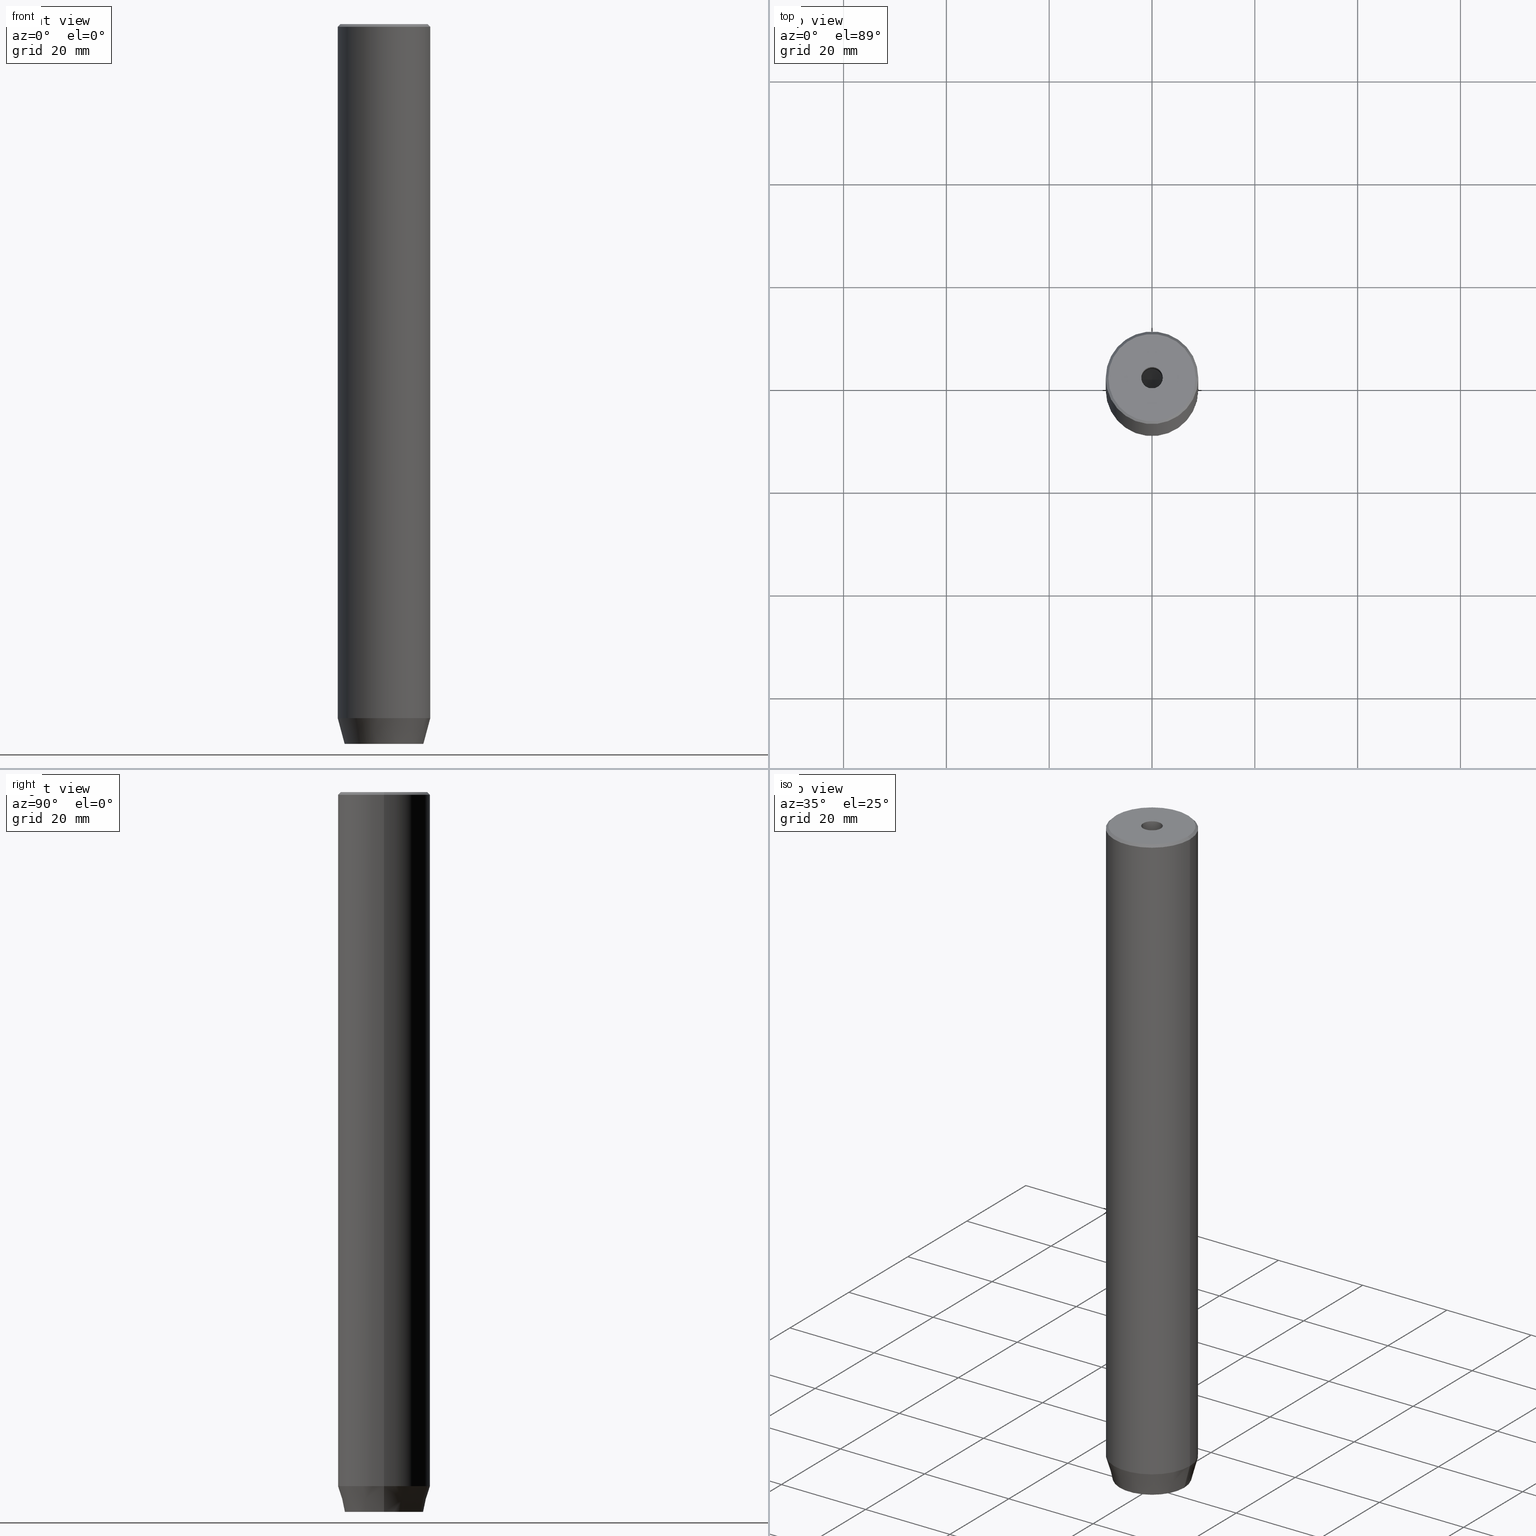
[diagram: canonical four-view strip — front | top / right | iso, engineering-drawing reading convention]
A machine part, canonical four-view strip (front | top / right | iso — engineering-drawing reading convention). The complete STEP part file that produces these views, byte-faithful:
ISO-10303-21;
HEADER;
FILE_DESCRIPTION (( 'STEP AP203' ),
    '1' );
FILE_NAME ('d8d7.STEP',
    '2024-01-02T20:36:21',
    ( '' ),
    ( '' ),
    'SwSTEP 2.0',
    'SolidWorks 2019',
    '' );
FILE_SCHEMA (( 'CONFIG_CONTROL_DESIGN' ));
ENDSEC;

DATA;
#1 = EDGE_LOOP ( 'NONE', ( #64, #183 ) ) ;
#2 = CARTESIAN_POINT ( 'NONE',  ( -1.084202172485504434E-16, 3.464101615137754830, -137.2000000000000171 ) ) ;
#3 = ORIENTED_EDGE ( 'NONE', *, *, #121, .F. ) ;
#4 = CALENDAR_DATE ( 2024, 2, 1 ) ;
#5 = CARTESIAN_POINT ( 'NONE',  ( 3.000000000000000000, 1.732050807568876527, -140.0000000000000000 ) ) ;
#6 = AXIS2_PLACEMENT_3D ( 'NONE', #481, #444, #535 ) ;
#7 = VERTEX_POINT ( 'NONE', #209 ) ;
#8 = CARTESIAN_POINT ( 'NONE',  ( 3.000000000000000000, -1.732050807568876527, -137.2000000000000171 ) ) ;
#9 = CIRCLE ( 'NONE', #83, 9.000000000000000000 ) ;
#10 = LOCAL_TIME ( 21, 36, 21.00000000000000000, #490 ) ;
#11 = DIRECTION ( 'NONE',  ( -0.000000000000000000, -0.000000000000000000, 1.000000000000000000 ) ) ;
#12 = DIRECTION ( 'NONE',  ( -0.000000000000000000, -0.000000000000000000, 1.000000000000000000 ) ) ;
#13 = CONICAL_SURFACE ( 'NONE', #230, 8.500000000000021316, 0.7853981633974447263 ) ;
#14 = AXIS2_PLACEMENT_3D ( 'NONE', #57, #471, #195 ) ;
#15 = EDGE_CURVE ( 'NONE', #309, #546, #401, .T. ) ;
#16 = FACE_OUTER_BOUND ( 'NONE', #1, .T. ) ;
#17 = ORIENTED_EDGE ( 'NONE', *, *, #479, .F. ) ;
#18 = APPROVAL ( #180, 'NEUR�EN�' ) ;
#19 = DIRECTION ( 'NONE',  ( -1.000000000000000000, 0.000000000000000000, -0.000000000000000000 ) ) ;
#20 = ORIENTED_EDGE ( 'NONE', *, *, #538, .F. ) ;
#21 = CYLINDRICAL_SURFACE ( 'NONE', #103, 2.099999999999997424 ) ;
#22 = EDGE_LOOP ( 'NONE', ( #239, #37, #213, #562 ) ) ;
#23 = ADVANCED_FACE ( 'NONE', ( #572 ), #154, .T. ) ;
#24 = CIRCLE ( 'NONE', #545, 7.660254037844381969 ) ;
#25 = DIRECTION ( 'NONE',  ( -0.8571673007021111124, 1.049727191138617217E-16, 0.5150380749100562650 ) ) ;
#26 = ORIENTED_EDGE ( 'NONE', *, *, #460, .F. ) ;
#27 = CYLINDRICAL_SURFACE ( 'NONE', #501, 9.000000000000000000 ) ;
#28 = CARTESIAN_POINT ( 'NONE',  ( 1.500000000000000222, -2.598076211353315568, -140.0000000000000000 ) ) ;
#29 = CARTESIAN_POINT ( 'NONE',  ( 1.500000000000000222, 2.598076211353315568, -140.0000000000000000 ) ) ;
#30 = CONICAL_SURFACE ( 'NONE', #127, 2.099999999999996092, 1.029744258676652091 ) ;
#31 = AXIS2_PLACEMENT_3D ( 'NONE', #402, #526, #210 ) ;
#32 = ORIENTED_EDGE ( 'NONE', *, *, #224, .F. ) ;
#33 = CC_DESIGN_PERSON_AND_ORGANIZATION_ASSIGNMENT ( #231, #419, ( #447 ) ) ;
#34 = PLANE ( 'NONE',  #31 ) ;
#35 = AXIS2_PLACEMENT_3D ( 'NONE', #344, #297, #165 ) ;
#36 = CARTESIAN_POINT ( 'NONE',  ( -2.099999999999997424, 2.571758278209438506E-16, 0.000000000000000000 ) ) ;
#37 = ORIENTED_EDGE ( 'NONE', *, *, #242, .F. ) ;
#38 = CARTESIAN_POINT ( 'NONE',  ( 0.000000000000000000, 0.000000000000000000, -1.990051048614449116E-16 ) ) ;
#39 = ORIENTED_EDGE ( 'NONE', *, *, #417, .F. ) ;
#40 = EDGE_CURVE ( 'NONE', #276, #7, #528, .T. ) ;
#41 = ADVANCED_FACE ( 'NONE', ( #346, #130 ), #71, .T. ) ;
#42 = VECTOR ( 'NONE', #406, 1000.000000000000000 ) ;
#43 = VECTOR ( 'NONE', #473, 1000.000000000000000 ) ;
#44 = CARTESIAN_POINT ( 'NONE',  ( -3.000000000000000444, -7.511572993685800087E-16, -140.0000000000000000 ) ) ;
#45 = ORIENTED_EDGE ( 'NONE', *, *, #181, .T. ) ;
#46 = DIRECTION ( 'NONE',  ( 1.000000000000000000, 0.000000000000000000, 0.000000000000000000 ) ) ;
#47 = CARTESIAN_POINT ( 'NONE',  ( 0.000000000000000000, 0.000000000000000000, 0.000000000000000000 ) ) ;
#48 = VERTEX_POINT ( 'NONE', #478 ) ;
#49 = APPROVAL_DATE_TIME ( #458, #499 ) ;
#50 = DIRECTION ( 'NONE',  ( -0.000000000000000000, 0.000000000000000000, -1.000000000000000000 ) ) ;
#51 = ORIENTED_EDGE ( 'NONE', *, *, #495, .F. ) ;
#52 = APPROVAL_ROLE ( '' ) ;
#53 = CARTESIAN_POINT ( 'NONE',  ( -3.000000000000000444, -7.511572993685800087E-16, -137.2000000000000171 ) ) ;
#54 = ORIENTED_EDGE ( 'NONE', *, *, #192, .T. ) ;
#55 = CARTESIAN_POINT ( 'NONE',  ( 0.000000000000000000, 0.000000000000000000, 0.000000000000000000 ) ) ;
#56 = DIRECTION ( 'NONE',  ( -0.000000000000000000, -0.000000000000000000, -1.000000000000000000 ) ) ;
#57 = CARTESIAN_POINT ( 'NONE',  ( 0.000000000000000000, 0.000000000000000000, -20.00000000000000000 ) ) ;
#58 = EDGE_CURVE ( 'NONE', #383, #87, #251, .T. ) ;
#59 = LINE ( 'NONE', #238, #43 ) ;
#60 = EDGE_CURVE ( 'NONE', #276, #364, #525, .T. ) ;
#61 = CLOSED_SHELL ( 'NONE', ( #249, #567, #350, #201, #291, #423, #41, #558, #23, #145, #105, #281, #75, #223, #207, #441, #585, #233, #311 ) ) ;
#62 = CONICAL_SURFACE ( 'NONE', #173, 8.500000000000021316, 0.7853981633974447263 ) ;
#63 = DIRECTION ( 'NONE',  ( 0.8660254037844387076, 0.4999999999999999445, 0.000000000000000000 ) ) ;
#64 = ORIENTED_EDGE ( 'NONE', *, *, #266, .F. ) ;
#65 = CARTESIAN_POINT ( 'NONE',  ( -2.099999999999996092, 2.571758278209436534E-16, -20.00000000000000000 ) ) ;
#66 = EDGE_LOOP ( 'NONE', ( #358, #516, #519, #131 ) ) ;
#67 = DIRECTION ( 'NONE',  ( -1.000000000000000000, 0.000000000000000000, 0.000000000000000000 ) ) ;
#68 = EDGE_LOOP ( 'NONE', ( #112, #318, #206, #579 ) ) ;
#69 = VECTOR ( 'NONE', #504, 1000.000000000000000 ) ;
#70 = CARTESIAN_POINT ( 'NONE',  ( 0.000000000000000000, 0.000000000000000000, -1.990051048614449116E-16 ) ) ;
#71 = PLANE ( 'NONE',  #532 ) ;
#72 = APPROVAL_PERSON_ORGANIZATION ( #365, #18, #498 ) ;
#73 = PLANE ( 'NONE',  #259 ) ;
#74 = ORIENTED_EDGE ( 'NONE', *, *, #470, .T. ) ;
#75 = ADVANCED_FACE ( 'NONE', ( #81 ), #488, .F. ) ;
#76 = EDGE_CURVE ( 'NONE', #176, #260, #482, .T. ) ;
#77 = PRODUCT_RELATED_PRODUCT_CATEGORY ( 'detail', '', ( #256 ) ) ;
#78 = FACE_OUTER_BOUND ( 'NONE', #392, .T. ) ;
#79 = VECTOR ( 'NONE', #462, 1000.000000000000000 ) ;
#80 =( NAMED_UNIT ( * ) SI_UNIT ( $, .STERADIAN. ) SOLID_ANGLE_UNIT ( ) );
#81 = FACE_OUTER_BOUND ( 'NONE', #66, .T. ) ;
#82 = EDGE_LOOP ( 'NONE', ( #486, #74, #179 ) ) ;
#83 = AXIS2_PLACEMENT_3D ( 'NONE', #394, #261, #307 ) ;
#84 = CARTESIAN_POINT ( 'NONE',  ( -2.099999999999996092, 2.571758278209436534E-16, -20.00000000000000000 ) ) ;
#85 = EDGE_CURVE ( 'NONE', #364, #243, #442, .T. ) ;
#86 = CARTESIAN_POINT ( 'NONE',  ( 1.500000000000000222, -2.598076211353315568, -137.2000000000000171 ) ) ;
#87 = VERTEX_POINT ( 'NONE', #352 ) ;
#88 = CALENDAR_DATE ( 2024, 2, 1 ) ;
#89 = LINE ( 'NONE', #452, #237 ) ;
#90 = ORIENTED_EDGE ( 'NONE', *, *, #331, .T. ) ;
#91 = VECTOR ( 'NONE', #168, 1000.000000000000000 ) ;
#92 = DATE_TIME_ROLE ( 'classification_date' ) ;
#93 = AXIS2_PLACEMENT_3D ( 'NONE', #240, #430, #19 ) ;
#94 = CARTESIAN_POINT ( 'NONE',  ( -3.000000000000000888, 1.732050807568876527, -140.0000000000000000 ) ) ;
#95 = APPROVAL_STATUS ( 'not_yet_approved' ) ;
#96 = CARTESIAN_POINT ( 'NONE',  ( -7.660254037844381969, 1.020146339021394469E-15, -140.0000000000000000 ) ) ;
#97 = ORIENTED_EDGE ( 'NONE', *, *, #359, .F. ) ;
#98 = CC_DESIGN_PERSON_AND_ORGANIZATION_ASSIGNMENT ( #310, #174, ( #122 ) ) ;
#99 = CARTESIAN_POINT ( 'NONE',  ( -9.000000000000000000, 1.102182119232617714E-15, -135.0000000000000000 ) ) ;
#100 = ORIENTED_EDGE ( 'NONE', *, *, #226, .F. ) ;
#101 = CARTESIAN_POINT ( 'NONE',  ( 3.000000000000000000, 1.732050807568876527, -137.2000000000000171 ) ) ;
#102 = VECTOR ( 'NONE', #275, 1000.000000000000000 ) ;
#103 = AXIS2_PLACEMENT_3D ( 'NONE', #202, #12, #340 ) ;
#104 = LINE ( 'NONE', #279, #408 ) ;
#105 = ADVANCED_FACE ( 'NONE', ( #78 ), #403, .F. ) ;
#106 = CARTESIAN_POINT ( 'NONE',  ( -2.168404344971008868E-16, -3.464101615137754830, -137.2000000000000171 ) ) ;
#107 = FACE_OUTER_BOUND ( 'NONE', #126, .T. ) ;
#108 = CIRCLE ( 'NONE', #463, 7.660254037844381969 ) ;
#109 = ORIENTED_EDGE ( 'NONE', *, *, #268, .T. ) ;
#110 = VECTOR ( 'NONE', #327, 1000.000000000000114 ) ;
#111 = DIRECTION ( 'NONE',  ( 0.8660254037844387076, 0.4999999999999999445, 0.000000000000000000 ) ) ;
#112 = ORIENTED_EDGE ( 'NONE', *, *, #338, .F. ) ;
#113 = VECTOR ( 'NONE', #351, 1000.000000000000000 ) ;
#114 = SECURITY_CLASSIFICATION ( '', '', #220 ) ;
#115 = LINE ( 'NONE', #284, #372 ) ;
#116 = VERTEX_POINT ( 'NONE', #397 ) ;
#117 = LINE ( 'NONE', #159, #555 ) ;
#118 = EDGE_LOOP ( 'NONE', ( #17, #203 ) ) ;
#119 = DIRECTION ( 'NONE',  ( 0.7071067811865451302, 8.659560562354903276E-17, -0.7071067811865500152 ) ) ;
#120 = CARTESIAN_POINT ( 'NONE',  ( -1.084202172485504434E-16, 3.464101615137754830, -137.2000000000000171 ) ) ;
#121 = EDGE_CURVE ( 'NONE', #540, #116, #446, .T. ) ;
#122 = PRODUCT_DEFINITION ( 'NEZN�M�', '', #447, #339 ) ;
#123 = DIRECTION ( 'NONE',  ( -0.8660254037844387076, -0.4999999999999999445, 0.000000000000000000 ) ) ;
#124 = LINE ( 'NONE', #448, #489 ) ;
#125 = DIRECTION ( 'NONE',  ( -0.4999999999999999445, 0.8660254037844387076, 0.000000000000000000 ) ) ;
#126 = EDGE_LOOP ( 'NONE', ( #157, #45, #337, #51 ) ) ;
#127 = AXIS2_PLACEMENT_3D ( 'NONE', #232, #186, #221 ) ;
#128 = EDGE_CURVE ( 'NONE', #187, #309, #407, .T. ) ;
#129 = CARTESIAN_POINT ( 'NONE',  ( 8.500000000000021316, 1.040949779275252901E-15, 0.000000000000000000 ) ) ;
#130 = FACE_OUTER_BOUND ( 'NONE', #160, .T. ) ;
#131 = ORIENTED_EDGE ( 'NONE', *, *, #242, .T. ) ;
#132 = APPLICATION_PROTOCOL_DEFINITION ( 'international standard', 'config_control_design', 1994, #158 ) ;
#133 = CARTESIAN_POINT ( 'NONE',  ( -8.500000000000021316, 0.000000000000000000, 0.000000000000000000 ) ) ;
#134 = ORIENTED_EDGE ( 'NONE', *, *, #422, .T. ) ;
#135 = FACE_OUTER_BOUND ( 'NONE', #457, .T. ) ;
#136 = DATE_AND_TIME ( #455, #299 ) ;
#137 = LINE ( 'NONE', #456, #102 ) ;
#138 = ORIENTED_EDGE ( 'NONE', *, *, #381, .F. ) ;
#139 = CC_DESIGN_DATE_AND_TIME_ASSIGNMENT ( #136, #316, ( #122 ) ) ;
#140 = PERSON_AND_ORGANIZATION ( #377, #328 ) ;
#141 = EDGE_CURVE ( 'NONE', #267, #412, #533, .T. ) ;
#142 = FACE_OUTER_BOUND ( 'NONE', #22, .T. ) ;
#143 = ORIENTED_EDGE ( 'NONE', *, *, #128, .F. ) ;
#144 = DIRECTION ( 'NONE',  ( 0.8660254037844385966, 0.5000000000000001110, 0.000000000000000000 ) ) ;
#145 = ADVANCED_FACE ( 'NONE', ( #308 ), #13, .T. ) ;
#146 = LINE ( 'NONE', #565, #523 ) ;
#147 = CIRCLE ( 'NONE', #345, 9.000000000000000000 ) ;
#148 = CARTESIAN_POINT ( 'NONE',  ( 0.000000000000000000, 0.000000000000000000, -140.0000000000000000 ) ) ;
#149 = VECTOR ( 'NONE', #483, 1000.000000000000000 ) ;
#150 = PRODUCT_DEFINITION_SHAPE ( 'NONE', 'NONE',  #122 ) ;
#151 = CARTESIAN_POINT ( 'NONE',  ( 0.000000000000000000, 0.000000000000000000, -135.0000000000000000 ) ) ;
#152 = VERTEX_POINT ( 'NONE', #269 ) ;
#153 = CARTESIAN_POINT ( 'NONE',  ( 3.000000000000000000, -1.732050807568876527, -140.0000000000000000 ) ) ;
#154 = CONICAL_SURFACE ( 'NONE', #6, 9.000000000000000000, 0.2617993877991499074 ) ;
#155 = ORIENTED_EDGE ( 'NONE', *, *, #404, .T. ) ;
#156 = LINE ( 'NONE', #518, #110 ) ;
#157 = ORIENTED_EDGE ( 'NONE', *, *, #282, .T. ) ;
#158 = APPLICATION_CONTEXT ( 'configuration controlled 3d designs of mechanical parts and assemblies' ) ;
#159 = CARTESIAN_POINT ( 'NONE',  ( 9.000000000000000000, 0.000000000000000000, 0.000000000000000000 ) ) ;
#160 = EDGE_LOOP ( 'NONE', ( #353, #290 ) ) ;
#161 = EDGE_CURVE ( 'NONE', #267, #383, #550, .T. ) ;
#162 = FACE_OUTER_BOUND ( 'NONE', #343, .T. ) ;
#163 = CARTESIAN_POINT ( 'NONE',  ( 1.500000000000000222, 2.598076211353315568, -137.2000000000000171 ) ) ;
#164 = AXIS2_PLACEMENT_3D ( 'NONE', #547, #314, #50 ) ;
#165 = DIRECTION ( 'NONE',  ( 1.000000000000000000, 0.000000000000000000, 0.000000000000000000 ) ) ;
#166 = CARTESIAN_POINT ( 'NONE',  ( 0.000000000000000000, 0.000000000000000000, 0.000000000000000000 ) ) ;
#167 = CARTESIAN_POINT ( 'NONE',  ( 0.000000000000000000, 0.000000000000000000, -137.2000000000000171 ) ) ;
#168 = DIRECTION ( 'NONE',  ( -0.000000000000000000, -0.000000000000000000, -1.000000000000000000 ) ) ;
#169 = VERTEX_POINT ( 'NONE', #193 ) ;
#170 = LINE ( 'NONE', #214, #149 ) ;
#171 = DIRECTION ( 'NONE',  ( -0.000000000000000000, -0.000000000000000000, 1.000000000000000000 ) ) ;
#172 = ORIENTED_EDGE ( 'NONE', *, *, #85, .F. ) ;
#173 = AXIS2_PLACEMENT_3D ( 'NONE', #380, #205, #67 ) ;
#174 = PERSON_AND_ORGANIZATION_ROLE ( 'creator' ) ;
#175 = DIRECTION ( 'NONE',  ( -1.000000000000000000, 0.000000000000000000, 0.000000000000000000 ) ) ;
#176 = VERTEX_POINT ( 'NONE', #459 ) ;
#177 = APPROVAL_ROLE ( '' ) ;
#178 = LINE ( 'NONE', #413, #69 ) ;
#179 = ORIENTED_EDGE ( 'NONE', *, *, #393, .T. ) ;
#180 = APPROVAL_STATUS ( 'not_yet_approved' ) ;
#181 = EDGE_CURVE ( 'NONE', #270, #546, #137, .T. ) ;
#182 = FACE_OUTER_BOUND ( 'NONE', #548, .T. ) ;
#183 = ORIENTED_EDGE ( 'NONE', *, *, #379, .F. ) ;
#184 = CC_DESIGN_DATE_AND_TIME_ASSIGNMENT ( #461, #92, ( #114 ) ) ;
#185 = APPROVAL_STATUS ( 'not_yet_approved' ) ;
#186 = DIRECTION ( 'NONE',  ( -0.000000000000000000, -0.000000000000000000, 1.000000000000000000 ) ) ;
#187 = VERTEX_POINT ( 'NONE', #376 ) ;
#188 = COORDINATED_UNIVERSAL_TIME_OFFSET ( 1, 0, .AHEAD. ) ;
#189 = ADVANCED_BREP_SHAPE_REPRESENTATION ( 'd8d7', ( #257, #300 ), #320 ) ;
#190 = APPROVAL_PERSON_ORGANIZATION ( #140, #499, #52 ) ;
#191 = DIRECTION ( 'NONE',  ( 1.000000000000000000, 0.000000000000000000, 0.000000000000000000 ) ) ;
#192 = EDGE_CURVE ( 'NONE', #243, #383, #265, .T. ) ;
#193 = CARTESIAN_POINT ( 'NONE',  ( -5.207640850796248781E-15, 0.000000000000000000, -21.26180729995787999 ) ) ;
#194 = VECTOR ( 'NONE', #529, 1000.000000000000000 ) ;
#195 = DIRECTION ( 'NONE',  ( 1.000000000000000000, 0.000000000000000000, 0.000000000000000000 ) ) ;
#196 = PLANE ( 'NONE',  #93 ) ;
#197 = ORIENTED_EDGE ( 'NONE', *, *, #76, .T. ) ;
#198 = CC_DESIGN_SECURITY_CLASSIFICATION ( #114, ( #447 ) ) ;
#199 = LINE ( 'NONE', #515, #396 ) ;
#200 = VERTEX_POINT ( 'NONE', #96 ) ;
#201 = ADVANCED_FACE ( 'NONE', ( #539 ), #305, .T. ) ;
#202 = CARTESIAN_POINT ( 'NONE',  ( 0.000000000000000000, 0.000000000000000000, 0.000000000000000000 ) ) ;
#203 = ORIENTED_EDGE ( 'NONE', *, *, #467, .F. ) ;
#204 = AXIS2_PLACEMENT_3D ( 'NONE', #53, #420, #386 ) ;
#205 = DIRECTION ( 'NONE',  ( 0.000000000000000000, 0.000000000000000000, -1.000000000000000000 ) ) ;
#206 = ORIENTED_EDGE ( 'NONE', *, *, #330, .T. ) ;
#207 = ADVANCED_FACE ( 'NONE', ( #135 ), #366, .F. ) ;
#208 = DIRECTION ( 'NONE',  ( 1.000000000000000000, 0.000000000000000000, 0.000000000000000000 ) ) ;
#209 = CARTESIAN_POINT ( 'NONE',  ( 3.000000000000000000, 1.732050807568876527, -137.2000000000000171 ) ) ;
#210 = DIRECTION ( 'NONE',  ( -0.8660254037844385966, 0.5000000000000001110, 0.000000000000000000 ) ) ;
#211 = CARTESIAN_POINT ( 'NONE',  ( -1.499999999999999556, 2.598076211353316012, -137.2000000000000171 ) ) ;
#212 = DIRECTION ( 'NONE',  ( 1.000000000000000000, 0.000000000000000000, 0.000000000000000000 ) ) ;
#213 = ORIENTED_EDGE ( 'NONE', *, *, #141, .F. ) ;
#214 = CARTESIAN_POINT ( 'NONE',  ( -3.000000000000000888, 1.732050807568876527, -137.2000000000000171 ) ) ;
#215 = CARTESIAN_POINT ( 'NONE',  ( 0.000000000000000000, 0.000000000000000000, 0.000000000000000000 ) ) ;
#216 = ORIENTED_EDGE ( 'NONE', *, *, #181, .F. ) ;
#217 = LINE ( 'NONE', #129, #357 ) ;
#218 = DIRECTION ( 'NONE',  ( -0.7071067811865451302, 0.000000000000000000, -0.7071067811865500152 ) ) ;
#219 = ORIENTED_EDGE ( 'NONE', *, *, #495, .T. ) ;
#220 = SECURITY_CLASSIFICATION_LEVEL ( 'unclassified' ) ;
#221 = DIRECTION ( 'NONE',  ( 1.000000000000000000, 0.000000000000000000, 0.000000000000000000 ) ) ;
#222 = ORIENTED_EDGE ( 'NONE', *, *, #60, .T. ) ;
#223 = ADVANCED_FACE ( 'NONE', ( #142 ), #324, .F. ) ;
#224 = EDGE_CURVE ( 'NONE', #7, #243, #543, .T. ) ;
#225 = CARTESIAN_POINT ( 'NONE',  ( 3.000000000000000000, -1.732050807568876527, -137.2000000000000171 ) ) ;
#226 = EDGE_CURVE ( 'NONE', #260, #246, #551, .T. ) ;
#227 = PERSON_AND_ORGANIZATION ( #377, #328 ) ;
#228 = FACE_OUTER_BOUND ( 'NONE', #82, .T. ) ;
#229 = VERTEX_POINT ( 'NONE', #278 ) ;
#230 = AXIS2_PLACEMENT_3D ( 'NONE', #349, #449, #175 ) ;
#231 = PERSON_AND_ORGANIZATION ( #377, #328 ) ;
#232 = CARTESIAN_POINT ( 'NONE',  ( 0.000000000000000000, 0.000000000000000000, -20.00000000000000000 ) ) ;
#233 = ADVANCED_FACE ( 'NONE', ( #228 ), #30, .F. ) ;
#234 = CC_DESIGN_APPROVAL ( #499, ( #447 ) ) ;
#235 = FACE_OUTER_BOUND ( 'NONE', #464, .T. ) ;
#236 = DIRECTION ( 'NONE',  ( 0.2588190451025211836, 0.000000000000000000, 0.9659258262890680902 ) ) ;
#237 = VECTOR ( 'NONE', #416, 1000.000000000000000 ) ;
#238 = CARTESIAN_POINT ( 'NONE',  ( -3.000000000000000444, -7.511572993685800087E-16, -137.2000000000000171 ) ) ;
#239 = ORIENTED_EDGE ( 'NONE', *, *, #58, .T. ) ;
#240 = CARTESIAN_POINT ( 'NONE',  ( 0.000000000000000000, 7.660254037844381969, -140.0000000000000000 ) ) ;
#241 = AXIS2_PLACEMENT_3D ( 'NONE', #70, #294, #580 ) ;
#242 = EDGE_CURVE ( 'NONE', #412, #87, #89, .T. ) ;
#243 = VERTEX_POINT ( 'NONE', #5 ) ;
#244 = CC_DESIGN_PERSON_AND_ORGANIZATION_ASSIGNMENT ( #451, #323, ( #256 ) ) ;
#245 = CYLINDRICAL_SURFACE ( 'NONE', #465, 9.000000000000000000 ) ;
#246 = VERTEX_POINT ( 'NONE', #94 ) ;
#247 = CARTESIAN_POINT ( 'NONE',  ( 0.000000000000000000, 0.000000000000000000, 0.000000000000000000 ) ) ;
#248 = VERTEX_POINT ( 'NONE', #466 ) ;
#249 = ADVANCED_FACE ( 'NONE', ( #235 ), #421, .F. ) ;
#250 = DIRECTION ( 'NONE',  ( 0.000000000000000000, 0.000000000000000000, -1.000000000000000000 ) ) ;
#251 = LINE ( 'NONE', #28, #42 ) ;
#252 = DIRECTION ( 'NONE',  ( 0.000000000000000000, 0.000000000000000000, -1.000000000000000000 ) ) ;
#253 = DIRECTION ( 'NONE',  ( -0.000000000000000000, -0.000000000000000000, -1.000000000000000000 ) ) ;
#254 = DIRECTION ( 'NONE',  ( 1.000000000000000000, 0.000000000000000000, 0.000000000000000000 ) ) ;
#255 = ORIENTED_EDGE ( 'NONE', *, *, #58, .F. ) ;
#256 = PRODUCT ( 'd8d7', 'd8d7', '', ( #583 ) ) ;
#257 = MANIFOLD_SOLID_BREP ( 'Vrt�k z�vitn�ku pro M5 z�vit1', #61 ) ;
#258 = CARTESIAN_POINT ( 'NONE',  ( -1.500000000000000666, -2.598076211353316456, -137.2000000000000171 ) ) ;
#259 = AXIS2_PLACEMENT_3D ( 'NONE', #167, #252, #440 ) ;
#260 = VERTEX_POINT ( 'NONE', #378 ) ;
#261 = DIRECTION ( 'NONE',  ( 0.000000000000000000, 0.000000000000000000, -1.000000000000000000 ) ) ;
#262 = DIRECTION ( 'NONE',  ( -0.8660254037844385966, -0.5000000000000001110, 0.000000000000000000 ) ) ;
#263 = EDGE_LOOP ( 'NONE', ( #216, #155, #219, #286 ) ) ;
#264 = PERSON_AND_ORGANIZATION_ROLE ( 'classification_officer' ) ;
#265 = LINE ( 'NONE', #272, #334 ) ;
#266 = EDGE_CURVE ( 'NONE', #578, #200, #108, .T. ) ;
#267 = VERTEX_POINT ( 'NONE', #225 ) ;
#268 = EDGE_CURVE ( 'NONE', #412, #176, #178, .T. ) ;
#269 = CARTESIAN_POINT ( 'NONE',  ( 9.000000000000000000, 0.000000000000000000, -0.4999999999999813483 ) ) ;
#270 = VERTEX_POINT ( 'NONE', #99 ) ;
#271 = PERSON_AND_ORGANIZATION_ROLE ( 'design_supplier' ) ;
#272 = CARTESIAN_POINT ( 'NONE',  ( 3.000000000000000000, 0.000000000000000000, -140.0000000000000000 ) ) ;
#273 = EDGE_LOOP ( 'NONE', ( #582, #371, #566, #530 ) ) ;
#274 = PERSON_AND_ORGANIZATION ( #377, #328 ) ;
#275 = DIRECTION ( 'NONE',  ( -0.000000000000000000, -0.000000000000000000, 1.000000000000000000 ) ) ;
#276 = VERTEX_POINT ( 'NONE', #2 ) ;
#277 = SHAPE_DEFINITION_REPRESENTATION ( #150, #189 ) ;
#278 = CARTESIAN_POINT ( 'NONE',  ( 9.000000000000000000, 0.000000000000000000, -135.0000000000000000 ) ) ;
#279 = CARTESIAN_POINT ( 'NONE',  ( -1.500000000000000666, -2.598076211353316456, -140.0000000000000000 ) ) ;
#280 = LINE ( 'NONE', #469, #296 ) ;
#281 = ADVANCED_FACE ( 'NONE', ( #182 ), #369, .F. ) ;
#282 = EDGE_CURVE ( 'NONE', #229, #270, #573, .T. ) ;
#283 = AXIS2_PLACEMENT_3D ( 'NONE', #211, #125, #123 ) ;
#284 = CARTESIAN_POINT ( 'NONE',  ( 9.000000000000000000, 0.000000000000000000, -135.0000000000000000 ) ) ;
#285 = EDGE_CURVE ( 'NONE', #169, #540, #335, .T. ) ;
#286 = ORIENTED_EDGE ( 'NONE', *, *, #538, .T. ) ;
#287 = FACE_OUTER_BOUND ( 'NONE', #315, .T. ) ;
#288 = CIRCLE ( 'NONE', #445, 9.000000000000000000 ) ;
#289 = CC_DESIGN_APPROVAL ( #18, ( #122 ) ) ;
#290 = ORIENTED_EDGE ( 'NONE', *, *, #128, .T. ) ;
#291 = ADVANCED_FACE ( 'NONE', ( #107 ), #245, .T. ) ;
#292 = CARTESIAN_POINT ( 'NONE',  ( -8.500000000000021316, 0.000000000000000000, 0.000000000000000000 ) ) ;
#293 = ORIENTED_EDGE ( 'NONE', *, *, #15, .F. ) ;
#294 = DIRECTION ( 'NONE',  ( -0.000000000000000000, -0.000000000000000000, 1.000000000000000000 ) ) ;
#295 = ORIENTED_EDGE ( 'NONE', *, *, #507, .T. ) ;
#296 = VECTOR ( 'NONE', #63, 999.9999999999998863 ) ;
#297 = DIRECTION ( 'NONE',  ( -0.000000000000000000, -0.000000000000000000, 1.000000000000000000 ) ) ;
#298 = CARTESIAN_POINT ( 'NONE',  ( -3.000000000000000000, -1.732050807568877859, -137.2000000000000171 ) ) ;
#299 = LOCAL_TIME ( 21, 36, 21.00000000000000000, #188 ) ;
#300 = AXIS2_PLACEMENT_3D ( 'NONE', #55, #360, #46 ) ;
#301 =( LENGTH_UNIT ( ) NAMED_UNIT ( * ) SI_UNIT ( .MILLI., .METRE. ) );
#302 = ORIENTED_EDGE ( 'NONE', *, *, #393, .F. ) ;
#303 = DIRECTION ( 'NONE',  ( -0.000000000000000000, -0.000000000000000000, 1.000000000000000000 ) ) ;
#304 = DIRECTION ( 'NONE',  ( 0.000000000000000000, -0.000000000000000000, 1.000000000000000000 ) ) ;
#305 = CONICAL_SURFACE ( 'NONE', #425, 9.000000000000000000, 0.2617993877991499074 ) ;
#306 = ORIENTED_EDGE ( 'NONE', *, *, #192, .F. ) ;
#307 = DIRECTION ( 'NONE',  ( 1.000000000000000000, 0.000000000000000000, 0.000000000000000000 ) ) ;
#308 = FACE_OUTER_BOUND ( 'NONE', #385, .T. ) ;
#309 = VERTEX_POINT ( 'NONE', #292 ) ;
#310 = PERSON_AND_ORGANIZATION ( #377, #328 ) ;
#311 = ADVANCED_FACE ( 'NONE', ( #287 ), #21, .F. ) ;
#312 = CARTESIAN_POINT ( 'NONE',  ( 0.000000000000000000, 0.000000000000000000, -140.0000000000000000 ) ) ;
#313 = EDGE_LOOP ( 'NONE', ( #375, #32, #454, #222 ) ) ;
#314 = DIRECTION ( 'NONE',  ( 1.000000000000000000, 0.000000000000000000, -0.000000000000000000 ) ) ;
#315 = EDGE_LOOP ( 'NONE', ( #3, #302, #90, #570 ) ) ;
#316 = DATE_TIME_ROLE ( 'creation_date' ) ;
#317 = CARTESIAN_POINT ( 'NONE',  ( 0.000000000000000000, 0.000000000000000000, -135.0000000000000000 ) ) ;
#318 = ORIENTED_EDGE ( 'NONE', *, *, #379, .T. ) ;
#319 = CIRCLE ( 'NONE', #400, 2.099999999999996092 ) ;
#320 =( GEOMETRIC_REPRESENTATION_CONTEXT ( 3 ) GLOBAL_UNCERTAINTY_ASSIGNED_CONTEXT ( ( #564 ) ) GLOBAL_UNIT_ASSIGNED_CONTEXT ( ( #301, #443, #80 ) ) REPRESENTATION_CONTEXT ( 'NONE', 'WORKASPACE' ) );
#321 = DIRECTION ( 'NONE',  ( 1.000000000000000000, 0.000000000000000000, 0.000000000000000000 ) ) ;
#322 = ORIENTED_EDGE ( 'NONE', *, *, #417, .T. ) ;
#323 = PERSON_AND_ORGANIZATION_ROLE ( 'design_owner' ) ;
#324 = PLANE ( 'NONE',  #563 ) ;
#325 = VECTOR ( 'NONE', #56, 1000.000000000000000 ) ;
#326 = AXIS2_PLACEMENT_3D ( 'NONE', #247, #509, #424 ) ;
#327 = DIRECTION ( 'NONE',  ( -0.2588190451025211836, 3.169619151431770488E-17, 0.9659258262890680902 ) ) ;
#328 = ORGANIZATION ( 'NEUR�EN�', 'NEUR�EN�', '' ) ;
#329 = DIRECTION ( 'NONE',  ( -0.000000000000000000, -0.000000000000000000, 1.000000000000000000 ) ) ;
#330 = EDGE_CURVE ( 'NONE', #578, #229, #115, .T. ) ;
#331 = EDGE_CURVE ( 'NONE', #496, #48, #146, .T. ) ;
#332 = DIRECTION ( 'NONE',  ( -0.000000000000000000, -0.000000000000000000, 1.000000000000000000 ) ) ;
#333 = ORIENTED_EDGE ( 'NONE', *, *, #560, .F. ) ;
#334 = VECTOR ( 'NONE', #493, 1000.000000000000000 ) ;
#335 = LINE ( 'NONE', #65, #387 ) ;
#336 = CIRCLE ( 'NONE', #326, 8.500000000000021316 ) ;
#337 = ORIENTED_EDGE ( 'NONE', *, *, #541, .T. ) ;
#338 = EDGE_CURVE ( 'NONE', #200, #270, #156, .T. ) ;
#339 = DESIGN_CONTEXT ( 'detailed design', #510, 'design' ) ;
#340 = DIRECTION ( 'NONE',  ( 1.000000000000000000, 0.000000000000000000, 0.000000000000000000 ) ) ;
#341 = ORIENTED_EDGE ( 'NONE', *, *, #507, .F. ) ;
#342 = DIRECTION ( 'NONE',  ( -0.000000000000000000, -0.000000000000000000, 1.000000000000000000 ) ) ;
#343 = EDGE_LOOP ( 'NONE', ( #536, #409, #492 ) ) ;
#344 = CARTESIAN_POINT ( 'NONE',  ( 0.000000000000000000, 0.000000000000000000, -20.00000000000000000 ) ) ;
#345 = AXIS2_PLACEMENT_3D ( 'NONE', #554, #329, #512 ) ;
#346 = FACE_BOUND ( 'NONE', #118, .T. ) ;
#347 = FACE_OUTER_BOUND ( 'NONE', #559, .T. ) ;
#348 = CIRCLE ( 'NONE', #241, 2.099999999999998757 ) ;
#349 = CARTESIAN_POINT ( 'NONE',  ( 0.000000000000000000, 0.000000000000000000, 0.000000000000000000 ) ) ;
#350 = ADVANCED_FACE ( 'NONE', ( #475 ), #62, .T. ) ;
#351 = DIRECTION ( 'NONE',  ( 0.8571673007021111124, 0.000000000000000000, 0.5150380749100562650 ) ) ;
#352 = CARTESIAN_POINT ( 'NONE',  ( -2.168404344971008868E-16, -3.464101615137754830, -140.0000000000000000 ) ) ;
#353 = ORIENTED_EDGE ( 'NONE', *, *, #359, .T. ) ;
#354 = CARTESIAN_POINT ( 'NONE',  ( 0.000000000000000000, 0.000000000000000000, -0.4999999999999813483 ) ) ;
#355 = DIRECTION ( 'NONE',  ( 1.000000000000000000, 0.000000000000000000, 0.000000000000000000 ) ) ;
#356 = VECTOR ( 'NONE', #575, 1000.000000000000000 ) ;
#357 = VECTOR ( 'NONE', #119, 1000.000000000000114 ) ;
#358 = ORIENTED_EDGE ( 'NONE', *, *, #381, .T. ) ;
#359 = EDGE_CURVE ( 'NONE', #309, #187, #336, .T. ) ;
#360 = DIRECTION ( 'NONE',  ( 0.000000000000000000, 0.000000000000000000, 1.000000000000000000 ) ) ;
#361 = CC_DESIGN_PERSON_AND_ORGANIZATION_ASSIGNMENT ( #274, #264, ( #114 ) ) ;
#362 = DIRECTION ( 'NONE',  ( 0.8660254037844385966, -0.5000000000000001110, 0.000000000000000000 ) ) ;
#363 = CIRCLE ( 'NONE', #511, 2.099999999999998757 ) ;
#364 = VERTEX_POINT ( 'NONE', #561 ) ;
#365 = PERSON_AND_ORGANIZATION ( #377, #328 ) ;
#366 = PLANE ( 'NONE',  #164 ) ;
#367 = ORIENTED_EDGE ( 'NONE', *, *, #560, .T. ) ;
#368 = COORDINATED_UNIVERSAL_TIME_OFFSET ( 1, 0, .AHEAD. ) ;
#369 = PLANE ( 'NONE',  #204 ) ;
#370 = VECTOR ( 'NONE', #262, 1000.000000000000000 ) ;
#371 = ORIENTED_EDGE ( 'NONE', *, *, #338, .T. ) ;
#372 = VECTOR ( 'NONE', #236, 1000.000000000000114 ) ;
#373 = APPROVAL_DATE_TIME ( #537, #398 ) ;
#374 = DIRECTION ( 'NONE',  ( -0.000000000000000000, -0.000000000000000000, 1.000000000000000000 ) ) ;
#375 = ORIENTED_EDGE ( 'NONE', *, *, #85, .T. ) ;
#376 = CARTESIAN_POINT ( 'NONE',  ( 8.500000000000021316, 1.071565949253935307E-15, 0.000000000000000000 ) ) ;
#377 = PERSON ( 'NEUR�EN�', 'NEUR�EN�', 'NEUR�EN�', ('NEUR�EN�'), ('NEUR�EN�'), ('NEUR�EN�') ) ;
#378 = CARTESIAN_POINT ( 'NONE',  ( -3.000000000000000000, -1.732050807568877859, -140.0000000000000000 ) ) ;
#379 = EDGE_CURVE ( 'NONE', #200, #578, #24, .T. ) ;
#380 = CARTESIAN_POINT ( 'NONE',  ( 0.000000000000000000, 0.000000000000000000, 0.000000000000000000 ) ) ;
#381 = EDGE_CURVE ( 'NONE', #87, #260, #104, .T. ) ;
#382 = DIRECTION ( 'NONE',  ( -0.000000000000000000, -0.000000000000000000, 1.000000000000000000 ) ) ;
#383 = VERTEX_POINT ( 'NONE', #153 ) ;
#384 = DIRECTION ( 'NONE',  ( 1.000000000000000000, 0.000000000000000000, 0.000000000000000000 ) ) ;
#385 = EDGE_LOOP ( 'NONE', ( #26, #97, #414, #20 ) ) ;
#386 = DIRECTION ( 'NONE',  ( 2.503857664561933362E-16, -1.000000000000000000, 0.000000000000000000 ) ) ;
#387 = VECTOR ( 'NONE', #25, 1000.000000000000000 ) ;
#388 = ORIENTED_EDGE ( 'NONE', *, *, #541, .F. ) ;
#389 = DIRECTION ( 'NONE',  ( -0.000000000000000000, -0.000000000000000000, 1.000000000000000000 ) ) ;
#390 = ORIENTED_EDGE ( 'NONE', *, *, #520, .F. ) ;
#391 = CARTESIAN_POINT ( 'NONE',  ( 0.000000000000000000, 0.000000000000000000, 0.000000000000000000 ) ) ;
#392 = EDGE_LOOP ( 'NONE', ( #322, #502, #581, #295 ) ) ;
#393 = EDGE_CURVE ( 'NONE', #496, #540, #426, .T. ) ;
#394 = CARTESIAN_POINT ( 'NONE',  ( 0.000000000000000000, 0.000000000000000000, -0.4999999999999813483 ) ) ;
#395 = AXIS2_PLACEMENT_3D ( 'NONE', #47, #11, #321 ) ;
#396 = VECTOR ( 'NONE', #111, 999.9999999999998863 ) ;
#397 = CARTESIAN_POINT ( 'NONE',  ( -2.099999999999998757, 2.571758278209440478E-16, -1.990051048614449116E-16 ) ) ;
#398 = APPROVAL ( #185, 'NEUR�EN�' ) ;
#399 = LINE ( 'NONE', #569, #113 ) ;
#400 = AXIS2_PLACEMENT_3D ( 'NONE', #574, #576, #254 ) ;
#401 = LINE ( 'NONE', #133, #552 ) ;
#402 = CARTESIAN_POINT ( 'NONE',  ( 1.500000000000000222, 2.598076211353315568, -137.2000000000000171 ) ) ;
#403 = PLANE ( 'NONE',  #283 ) ;
#404 = EDGE_CURVE ( 'NONE', #270, #229, #147, .T. ) ;
#405 = ORIENTED_EDGE ( 'NONE', *, *, #224, .T. ) ;
#406 = DIRECTION ( 'NONE',  ( -0.8660254037844385966, -0.5000000000000001110, 0.000000000000000000 ) ) ;
#407 = CIRCLE ( 'NONE', #484, 8.500000000000021316 ) ;
#408 = VECTOR ( 'NONE', #468, 1000.000000000000000 ) ;
#409 = ORIENTED_EDGE ( 'NONE', *, *, #285, .T. ) ;
#410 = COORDINATED_UNIVERSAL_TIME_OFFSET ( 1, 0, .AHEAD. ) ;
#411 = DIRECTION ( 'NONE',  ( -0.000000000000000000, -0.000000000000000000, -1.000000000000000000 ) ) ;
#412 = VERTEX_POINT ( 'NONE', #106 ) ;
#413 = CARTESIAN_POINT ( 'NONE',  ( -1.500000000000000666, -2.598076211353316456, -137.2000000000000171 ) ) ;
#414 = ORIENTED_EDGE ( 'NONE', *, *, #15, .T. ) ;
#415 = PERSON_AND_ORGANIZATION ( #377, #328 ) ;
#416 = DIRECTION ( 'NONE',  ( -0.000000000000000000, -0.000000000000000000, -1.000000000000000000 ) ) ;
#417 = EDGE_CURVE ( 'NONE', #246, #364, #280, .T. ) ;
#418 = EDGE_LOOP ( 'NONE', ( #39, #100, #138, #255, #306, #172 ) ) ;
#419 = PERSON_AND_ORGANIZATION_ROLE ( 'creator' ) ;
#420 = DIRECTION ( 'NONE',  ( -1.000000000000000000, -2.503857664561933362E-16, 0.000000000000000000 ) ) ;
#421 = CYLINDRICAL_SURFACE ( 'NONE', #395, 2.099999999999997424 ) ;
#422 = EDGE_CURVE ( 'NONE', #176, #248, #59, .T. ) ;
#423 = ADVANCED_FACE ( 'NONE', ( #427, #16 ), #196, .T. ) ;
#424 = DIRECTION ( 'NONE',  ( 1.000000000000000000, 0.000000000000000000, 0.000000000000000000 ) ) ;
#425 = AXIS2_PLACEMENT_3D ( 'NONE', #317, #374, #191 ) ;
#426 = CIRCLE ( 'NONE', #14, 2.099999999999996092 ) ;
#427 = FACE_BOUND ( 'NONE', #418, .T. ) ;
#428 = ORIENTED_EDGE ( 'NONE', *, *, #439, .T. ) ;
#429 = APPROVAL_PERSON_ORGANIZATION ( #227, #398, #177 ) ;
#430 = DIRECTION ( 'NONE',  ( 0.000000000000000000, 0.000000000000000000, -1.000000000000000000 ) ) ;
#431 = ORIENTED_EDGE ( 'NONE', *, *, #40, .T. ) ;
#432 = CARTESIAN_POINT ( 'NONE',  ( 0.000000000000000000, 0.000000000000000000, 0.000000000000000000 ) ) ;
#433 = ORIENTED_EDGE ( 'NONE', *, *, #460, .T. ) ;
#434 = VECTOR ( 'NONE', #438, 1000.000000000000000 ) ;
#435 = DIRECTION ( 'NONE',  ( 1.000000000000000000, 0.000000000000000000, 0.000000000000000000 ) ) ;
#436 = ORIENTED_EDGE ( 'NONE', *, *, #161, .F. ) ;
#437 = CARTESIAN_POINT ( 'NONE',  ( -9.000000000000000000, 1.102182119232617714E-15, -0.4999999999999813483 ) ) ;
#438 = DIRECTION ( 'NONE',  ( 0.8660254037844385966, -0.5000000000000001110, 0.000000000000000000 ) ) ;
#439 = EDGE_CURVE ( 'NONE', #248, #276, #199, .T. ) ;
#440 = DIRECTION ( 'NONE',  ( -1.000000000000000000, 0.000000000000000000, -0.000000000000000000 ) ) ;
#441 = ADVANCED_FACE ( 'NONE', ( #524 ), #34, .F. ) ;
#442 = LINE ( 'NONE', #29, #194 ) ;
#443 =( NAMED_UNIT ( * ) PLANE_ANGLE_UNIT ( ) SI_UNIT ( $, .RADIAN. ) );
#444 = DIRECTION ( 'NONE',  ( -0.000000000000000000, -0.000000000000000000, 1.000000000000000000 ) ) ;
#445 = AXIS2_PLACEMENT_3D ( 'NONE', #354, #250, #208 ) ;
#446 = LINE ( 'NONE', #36, #356 ) ;
#447 = PRODUCT_DEFINITION_FORMATION_WITH_SPECIFIED_SOURCE ( 'LIBOVOLN�', '', #256, .NOT_KNOWN. ) ;
#448 = CARTESIAN_POINT ( 'NONE',  ( 3.000000000000000000, 0.000000000000000000, -137.2000000000000171 ) ) ;
#449 = DIRECTION ( 'NONE',  ( 0.000000000000000000, 0.000000000000000000, -1.000000000000000000 ) ) ;
#450 = EDGE_LOOP ( 'NONE', ( #143, #433, #388, #293 ) ) ;
#451 = PERSON_AND_ORGANIZATION ( #377, #328 ) ;
#452 = CARTESIAN_POINT ( 'NONE',  ( -2.168404344971008868E-16, -3.464101615137754830, -137.2000000000000171 ) ) ;
#453 = VECTOR ( 'NONE', #253, 1000.000000000000000 ) ;
#454 = ORIENTED_EDGE ( 'NONE', *, *, #40, .F. ) ;
#455 = CALENDAR_DATE ( 2024, 2, 1 ) ;
#456 = CARTESIAN_POINT ( 'NONE',  ( -9.000000000000000000, 1.102182119232617714E-15, 0.000000000000000000 ) ) ;
#457 = EDGE_LOOP ( 'NONE', ( #54, #436, #333, #405 ) ) ;
#458 = DATE_AND_TIME ( #88, #10 ) ;
#459 = CARTESIAN_POINT ( 'NONE',  ( -3.000000000000000000, -1.732050807568877859, -137.2000000000000171 ) ) ;
#460 = EDGE_CURVE ( 'NONE', #187, #152, #217, .T. ) ;
#461 = DATE_AND_TIME ( #586, #527 ) ;
#462 = DIRECTION ( 'NONE',  ( -2.503857664561932376E-16, 1.000000000000000000, 0.000000000000000000 ) ) ;
#463 = AXIS2_PLACEMENT_3D ( 'NONE', #312, #491, #587 ) ;
#464 = EDGE_LOOP ( 'NONE', ( #390, #505, #472, #522 ) ) ;
#465 = AXIS2_PLACEMENT_3D ( 'NONE', #432, #389, #557 ) ;
#466 = CARTESIAN_POINT ( 'NONE',  ( -3.000000000000000888, 1.732050807568876527, -137.2000000000000171 ) ) ;
#467 = EDGE_CURVE ( 'NONE', #116, #48, #363, .T. ) ;
#468 = DIRECTION ( 'NONE',  ( -0.8660254037844385966, 0.5000000000000001110, 0.000000000000000000 ) ) ;
#469 = CARTESIAN_POINT ( 'NONE',  ( -1.499999999999999556, 2.598076211353316012, -140.0000000000000000 ) ) ;
#470 = EDGE_CURVE ( 'NONE', #169, #496, #399, .T. ) ;
#471 = DIRECTION ( 'NONE',  ( -0.000000000000000000, -0.000000000000000000, 1.000000000000000000 ) ) ;
#472 = ORIENTED_EDGE ( 'NONE', *, *, #467, .T. ) ;
#473 = DIRECTION ( 'NONE',  ( -2.503857664561932376E-16, 1.000000000000000000, 0.000000000000000000 ) ) ;
#474 = ORIENTED_EDGE ( 'NONE', *, *, #141, .T. ) ;
#475 = FACE_OUTER_BOUND ( 'NONE', #450, .T. ) ;
#476 = ORIENTED_EDGE ( 'NONE', *, *, #226, .T. ) ;
#477 = CARTESIAN_POINT ( 'NONE',  ( 2.099999999999996092, 0.000000000000000000, -20.00000000000000000 ) ) ;
#478 = CARTESIAN_POINT ( 'NONE',  ( 2.099999999999998757, 0.000000000000000000, -1.990051048614449116E-16 ) ) ;
#479 = EDGE_CURVE ( 'NONE', #48, #116, #348, .T. ) ;
#480 = CARTESIAN_POINT ( 'NONE',  ( 7.660254037844381969, 0.000000000000000000, -140.0000000000000000 ) ) ;
#481 = CARTESIAN_POINT ( 'NONE',  ( 0.000000000000000000, 0.000000000000000000, -135.0000000000000000 ) ) ;
#482 = LINE ( 'NONE', #298, #453 ) ;
#483 = DIRECTION ( 'NONE',  ( -0.000000000000000000, -0.000000000000000000, -1.000000000000000000 ) ) ;
#484 = AXIS2_PLACEMENT_3D ( 'NONE', #215, #171, #355 ) ;
#485 = DIRECTION ( 'NONE',  ( 1.000000000000000000, 0.000000000000000000, 0.000000000000000000 ) ) ;
#486 = ORIENTED_EDGE ( 'NONE', *, *, #285, .F. ) ;
#487 = DIRECTION ( 'NONE',  ( 1.000000000000000000, 0.000000000000000000, 0.000000000000000000 ) ) ;
#488 = PLANE ( 'NONE',  #544 ) ;
#489 = VECTOR ( 'NONE', #521, 1000.000000000000000 ) ;
#490 = COORDINATED_UNIVERSAL_TIME_OFFSET ( 1, 0, .AHEAD. ) ;
#491 = DIRECTION ( 'NONE',  ( -0.000000000000000000, -0.000000000000000000, 1.000000000000000000 ) ) ;
#492 = ORIENTED_EDGE ( 'NONE', *, *, #520, .T. ) ;
#493 = DIRECTION ( 'NONE',  ( 0.000000000000000000, -1.000000000000000000, 0.000000000000000000 ) ) ;
#494 = VECTOR ( 'NONE', #411, 1000.000000000000000 ) ;
#495 = EDGE_CURVE ( 'NONE', #229, #152, #117, .T. ) ;
#496 = VERTEX_POINT ( 'NONE', #477 ) ;
#497 = CC_DESIGN_PERSON_AND_ORGANIZATION_ASSIGNMENT ( #415, #271, ( #447 ) ) ;
#498 = APPROVAL_ROLE ( '' ) ;
#499 = APPROVAL ( #95, 'NEUR�EN�' ) ;
#500 = DIRECTION ( 'NONE',  ( 0.5000000000000001110, -0.8660254037844385966, 0.000000000000000000 ) ) ;
#501 = AXIS2_PLACEMENT_3D ( 'NONE', #391, #571, #487 ) ;
#502 = ORIENTED_EDGE ( 'NONE', *, *, #60, .F. ) ;
#503 = CALENDAR_DATE ( 2024, 2, 1 ) ;
#504 = DIRECTION ( 'NONE',  ( -0.8660254037844385966, 0.5000000000000001110, 0.000000000000000000 ) ) ;
#505 = ORIENTED_EDGE ( 'NONE', *, *, #121, .T. ) ;
#506 = COORDINATED_UNIVERSAL_TIME_OFFSET ( 1, 0, .AHEAD. ) ;
#507 = EDGE_CURVE ( 'NONE', #248, #246, #170, .T. ) ;
#508 = CARTESIAN_POINT ( 'NONE',  ( 1.500000000000000222, -2.598076211353315568, -137.2000000000000171 ) ) ;
#509 = DIRECTION ( 'NONE',  ( -0.000000000000000000, -0.000000000000000000, 1.000000000000000000 ) ) ;
#510 = APPLICATION_CONTEXT ( 'configuration controlled 3d designs of mechanical parts and assemblies' ) ;
#511 = AXIS2_PLACEMENT_3D ( 'NONE', #38, #342, #212 ) ;
#512 = DIRECTION ( 'NONE',  ( 1.000000000000000000, 0.000000000000000000, 0.000000000000000000 ) ) ;
#513 = DIRECTION ( 'NONE',  ( -0.000000000000000000, -0.000000000000000000, 1.000000000000000000 ) ) ;
#514 = ORIENTED_EDGE ( 'NONE', *, *, #422, .F. ) ;
#515 = CARTESIAN_POINT ( 'NONE',  ( -1.499999999999999556, 2.598076211353316012, -137.2000000000000171 ) ) ;
#516 = ORIENTED_EDGE ( 'NONE', *, *, #76, .F. ) ;
#517 = CC_DESIGN_APPROVAL ( #398, ( #114 ) ) ;
#518 = CARTESIAN_POINT ( 'NONE',  ( -9.000000000000000000, 1.102182119232617714E-15, -135.0000000000000000 ) ) ;
#519 = ORIENTED_EDGE ( 'NONE', *, *, #268, .F. ) ;
#520 = EDGE_CURVE ( 'NONE', #540, #496, #319, .T. ) ;
#521 = DIRECTION ( 'NONE',  ( 0.000000000000000000, -1.000000000000000000, 0.000000000000000000 ) ) ;
#522 = ORIENTED_EDGE ( 'NONE', *, *, #331, .F. ) ;
#523 = VECTOR ( 'NONE', #382, 1000.000000000000000 ) ;
#524 = FACE_OUTER_BOUND ( 'NONE', #313, .T. ) ;
#525 = LINE ( 'NONE', #120, #91 ) ;
#526 = DIRECTION ( 'NONE',  ( 0.5000000000000001110, 0.8660254037844385966, -0.000000000000000000 ) ) ;
#527 = LOCAL_TIME ( 21, 36, 21.00000000000000000, #410 ) ;
#528 = LINE ( 'NONE', #163, #434 ) ;
#529 = DIRECTION ( 'NONE',  ( 0.8660254037844385966, -0.5000000000000001110, 0.000000000000000000 ) ) ;
#530 = ORIENTED_EDGE ( 'NONE', *, *, #330, .F. ) ;
#531 = FACE_OUTER_BOUND ( 'NONE', #263, .T. ) ;
#532 = AXIS2_PLACEMENT_3D ( 'NONE', #166, #304, #485 ) ;
#533 = LINE ( 'NONE', #86, #370 ) ;
#534 = APPROVAL_DATE_TIME ( #542, #18 ) ;
#535 = DIRECTION ( 'NONE',  ( 1.000000000000000000, 0.000000000000000000, 0.000000000000000000 ) ) ;
#536 = ORIENTED_EDGE ( 'NONE', *, *, #470, .F. ) ;
#537 = DATE_AND_TIME ( #4, #568 ) ;
#538 = EDGE_CURVE ( 'NONE', #152, #546, #288, .T. ) ;
#539 = FACE_OUTER_BOUND ( 'NONE', #273, .T. ) ;
#540 = VERTEX_POINT ( 'NONE', #84 ) ;
#541 = EDGE_CURVE ( 'NONE', #546, #152, #9, .T. ) ;
#542 = DATE_AND_TIME ( #503, #556 ) ;
#543 = LINE ( 'NONE', #101, #494 ) ;
#544 = AXIS2_PLACEMENT_3D ( 'NONE', #258, #584, #362 ) ;
#545 = AXIS2_PLACEMENT_3D ( 'NONE', #148, #513, #384 ) ;
#546 = VERTEX_POINT ( 'NONE', #437 ) ;
#547 = CARTESIAN_POINT ( 'NONE',  ( 3.000000000000000000, 0.000000000000000000, -137.2000000000000171 ) ) ;
#548 = EDGE_LOOP ( 'NONE', ( #476, #341, #514, #197 ) ) ;
#549 = APPLICATION_PROTOCOL_DEFINITION ( 'international standard', 'config_control_design', 1994, #510 ) ;
#550 = LINE ( 'NONE', #8, #325 ) ;
#551 = LINE ( 'NONE', #44, #79 ) ;
#552 = VECTOR ( 'NONE', #218, 1000.000000000000114 ) ;
#553 = AXIS2_PLACEMENT_3D ( 'NONE', #151, #332, #435 ) ;
#554 = CARTESIAN_POINT ( 'NONE',  ( 0.000000000000000000, 0.000000000000000000, -135.0000000000000000 ) ) ;
#555 = VECTOR ( 'NONE', #303, 1000.000000000000000 ) ;
#556 = LOCAL_TIME ( 21, 36, 21.00000000000000000, #368 ) ;
#557 = DIRECTION ( 'NONE',  ( 1.000000000000000000, 0.000000000000000000, 0.000000000000000000 ) ) ;
#558 = ADVANCED_FACE ( 'NONE', ( #531 ), #27, .T. ) ;
#559 = EDGE_LOOP ( 'NONE', ( #428, #431, #367, #474, #109, #134 ) ) ;
#560 = EDGE_CURVE ( 'NONE', #7, #267, #124, .T. ) ;
#561 = CARTESIAN_POINT ( 'NONE',  ( -2.168404344971008868E-16, 3.464101615137753942, -140.0000000000000000 ) ) ;
#562 = ORIENTED_EDGE ( 'NONE', *, *, #161, .T. ) ;
#563 = AXIS2_PLACEMENT_3D ( 'NONE', #508, #500, #144 ) ;
#564 = UNCERTAINTY_MEASURE_WITH_UNIT (LENGTH_MEASURE( 1.000000000000000082E-05 ), #301, 'distance_accuracy_value', 'NONE');
#565 = CARTESIAN_POINT ( 'NONE',  ( 2.099999999999997424, 0.000000000000000000, 0.000000000000000000 ) ) ;
#566 = ORIENTED_EDGE ( 'NONE', *, *, #282, .F. ) ;
#567 = ADVANCED_FACE ( 'NONE', ( #162 ), #577, .F. ) ;
#568 = LOCAL_TIME ( 21, 36, 21.00000000000000000, #506 ) ;
#569 = CARTESIAN_POINT ( 'NONE',  ( 2.099999999999996092, 0.000000000000000000, -20.00000000000000000 ) ) ;
#570 = ORIENTED_EDGE ( 'NONE', *, *, #479, .T. ) ;
#571 = DIRECTION ( 'NONE',  ( -0.000000000000000000, -0.000000000000000000, 1.000000000000000000 ) ) ;
#572 = FACE_OUTER_BOUND ( 'NONE', #68, .T. ) ;
#573 = CIRCLE ( 'NONE', #553, 9.000000000000000000 ) ;
#574 = CARTESIAN_POINT ( 'NONE',  ( 0.000000000000000000, 0.000000000000000000, -20.00000000000000000 ) ) ;
#575 = DIRECTION ( 'NONE',  ( -0.000000000000000000, -0.000000000000000000, 1.000000000000000000 ) ) ;
#576 = DIRECTION ( 'NONE',  ( -0.000000000000000000, -0.000000000000000000, 1.000000000000000000 ) ) ;
#577 = CONICAL_SURFACE ( 'NONE', #35, 2.099999999999996092, 1.029744258676652091 ) ;
#578 = VERTEX_POINT ( 'NONE', #480 ) ;
#579 = ORIENTED_EDGE ( 'NONE', *, *, #404, .F. ) ;
#580 = DIRECTION ( 'NONE',  ( 1.000000000000000000, 0.000000000000000000, 0.000000000000000000 ) ) ;
#581 = ORIENTED_EDGE ( 'NONE', *, *, #439, .F. ) ;
#582 = ORIENTED_EDGE ( 'NONE', *, *, #266, .T. ) ;
#583 = MECHANICAL_CONTEXT ( 'NONE', #158, 'mechanical' ) ;
#584 = DIRECTION ( 'NONE',  ( -0.5000000000000001110, -0.8660254037844385966, 0.000000000000000000 ) ) ;
#585 = ADVANCED_FACE ( 'NONE', ( #347 ), #73, .T. ) ;
#586 = CALENDAR_DATE ( 2024, 2, 1 ) ;
#587 = DIRECTION ( 'NONE',  ( 1.000000000000000000, 0.000000000000000000, 0.000000000000000000 ) ) ;
ENDSEC;
END-ISO-10303-21;
